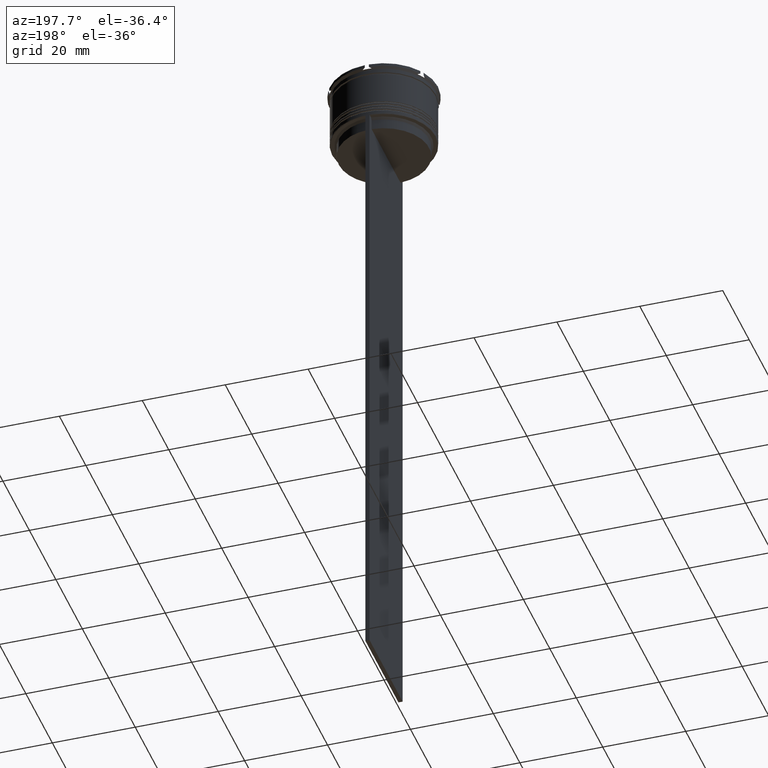
[diagram: clean part render]
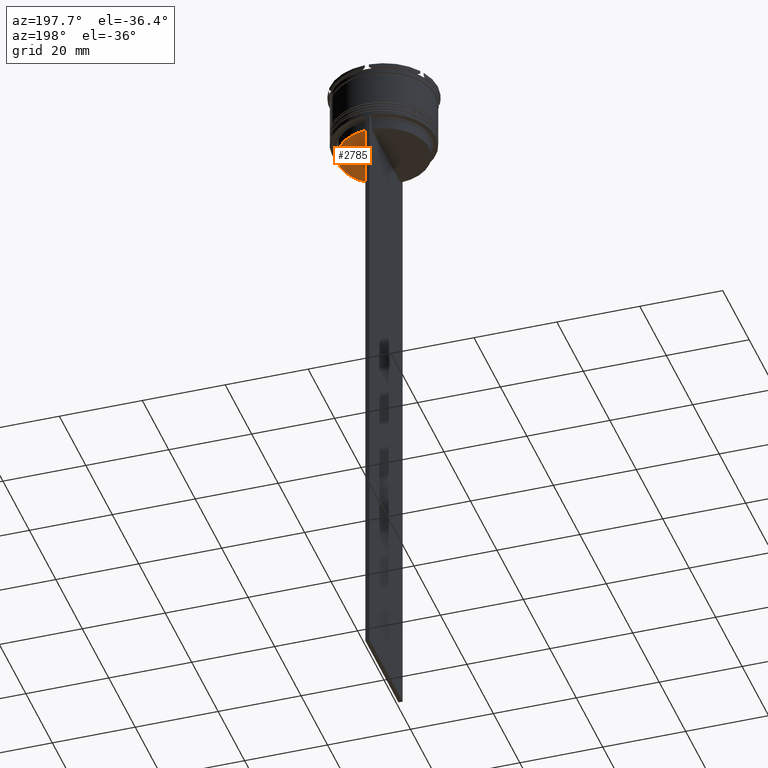
[diagram: same view with one face highlighted and labeled with its STEP entity id]
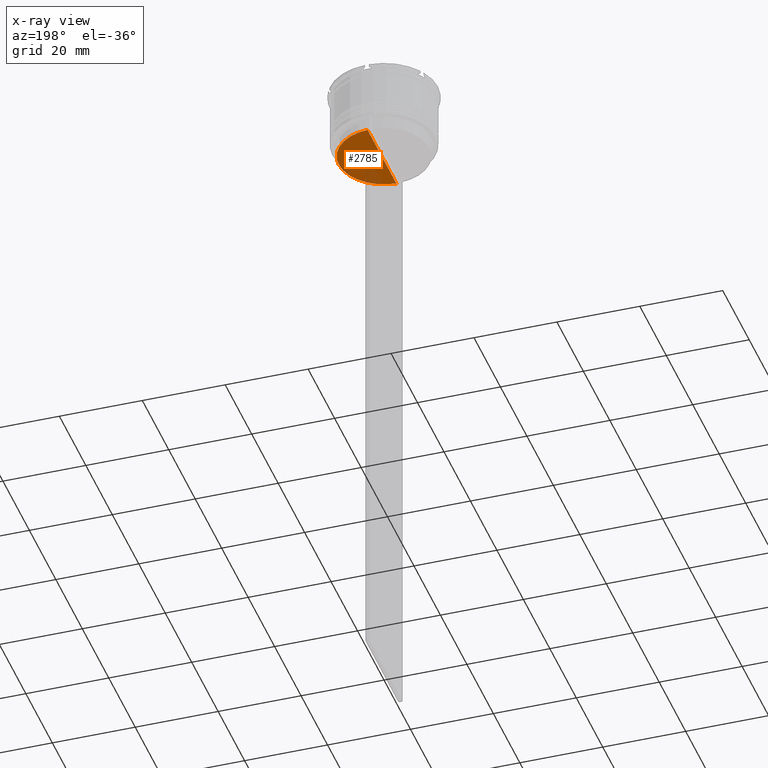
[diagram: x-ray of the same camera — body ghosted, the highlighted face saturated]
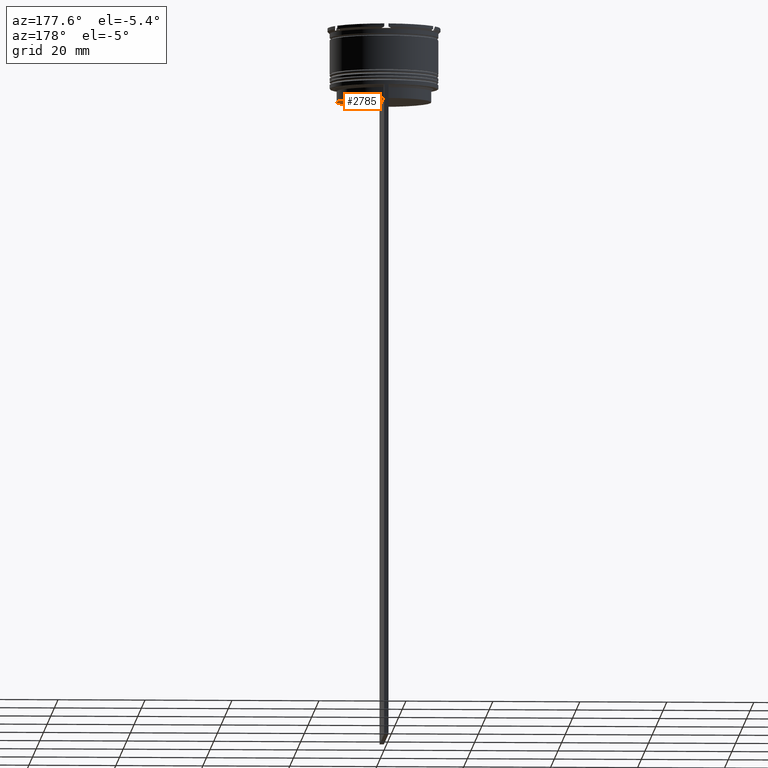
[diagram: same view with one face highlighted and labeled with its STEP entity id]
A machine part, auxiliary view. The second image highlights one B-rep face of the part: STEP entity #2785.
The next image is the same camera in x-ray: the body ghosted, the highlighted face saturated — about 13% of this face is hidden behind the body in this view.
A second angle (auxiliary view) of the same face is appended — the face is thin or edge-on in the first view.
In plain terms, the highlighted planar face has unit normal (0, -0, 1).
Its self-contained STEP definition (entity closure, byte-faithful):
#22 = ORIENTED_EDGE ( 'NONE', *, *, #2616, .F. ) ;
#100 = ORIENTED_EDGE ( 'NONE', *, *, #2596, .F. ) ;
#198 = DIRECTION ( 'NONE',  ( 1.000000000000000000, 0.000000000000000000, 0.000000000000000000 ) ) ;
#409 = CARTESIAN_POINT ( 'NONE',  ( 0.000000000000000000, 10.90000000000000213, -17.00000000000000000 ) ) ;
#488 = VECTOR ( 'NONE', #1418, 1000.000000000000000 ) ;
#675 = AXIS2_PLACEMENT_3D ( 'NONE', #409, #2225, #198 ) ;
#832 = CARTESIAN_POINT ( 'NONE',  ( 0.5000000000000000000, 10.88852607105296144, -17.00000000000000000 ) ) ;
#884 = CARTESIAN_POINT ( 'NONE',  ( 0.000000000000000000, 0.000000000000000000, -17.00000000000000000 ) ) ;
#948 = EDGE_LOOP ( 'NONE', ( #22, #100, #1071 ) ) ;
#1071 = ORIENTED_EDGE ( 'NONE', *, *, #1334, .F. ) ;
#1188 = AXIS2_PLACEMENT_3D ( 'NONE', #2504, #2099, #1435 ) ;
#1334 = EDGE_CURVE ( 'NONE', #2331, #1844, #1477, .T. ) ;
#1356 = DIRECTION ( 'NONE',  ( 1.000000000000000000, 0.000000000000000000, 0.000000000000000000 ) ) ;
#1418 = DIRECTION ( 'NONE',  ( 0.000000000000000000, -1.000000000000000000, 0.000000000000000000 ) ) ;
#1421 = CIRCLE ( 'NONE', #1188, 10.90000000000000213 ) ;
#1435 = DIRECTION ( 'NONE',  ( 1.000000000000000000, 0.000000000000000000, 0.000000000000000000 ) ) ;
#1477 = CIRCLE ( 'NONE', #2450, 10.90000000000000213 ) ;
#1551 = DIRECTION ( 'NONE',  ( -0.000000000000000000, -0.000000000000000000, 1.000000000000000000 ) ) ;
#1635 = LINE ( 'NONE', #1881, #488 ) ;
#1779 = VERTEX_POINT ( 'NONE', #832 ) ;
#1844 = VERTEX_POINT ( 'NONE', #2670 ) ;
#1881 = CARTESIAN_POINT ( 'NONE',  ( 0.5000000000000000000, 10.90000000000000213, -17.00000000000000000 ) ) ;
#2099 = DIRECTION ( 'NONE',  ( -0.000000000000000000, -0.000000000000000000, 1.000000000000000000 ) ) ;
#2182 = FACE_OUTER_BOUND ( 'NONE', #948, .T. ) ;
#2225 = DIRECTION ( 'NONE',  ( 0.000000000000000000, -0.000000000000000000, 1.000000000000000000 ) ) ;
#2331 = VERTEX_POINT ( 'NONE', #2687 ) ;
#2416 = PLANE ( 'NONE',  #675 ) ;
#2450 = AXIS2_PLACEMENT_3D ( 'NONE', #884, #1551, #1356 ) ;
#2504 = CARTESIAN_POINT ( 'NONE',  ( 0.000000000000000000, 0.000000000000000000, -17.00000000000000000 ) ) ;
#2596 = EDGE_CURVE ( 'NONE', #1844, #1779, #1421, .T. ) ;
#2616 = EDGE_CURVE ( 'NONE', #1779, #2331, #1635, .T. ) ;
#2670 = CARTESIAN_POINT ( 'NONE',  ( 10.90000000000000213, 0.000000000000000000, -17.00000000000000000 ) ) ;
#2687 = CARTESIAN_POINT ( 'NONE',  ( 0.5000000000000000000, -10.88852607105296144, -17.00000000000000000 ) ) ;
#2785 = ADVANCED_FACE ( 'NONE', ( #2182 ), #2416, .F. ) ;